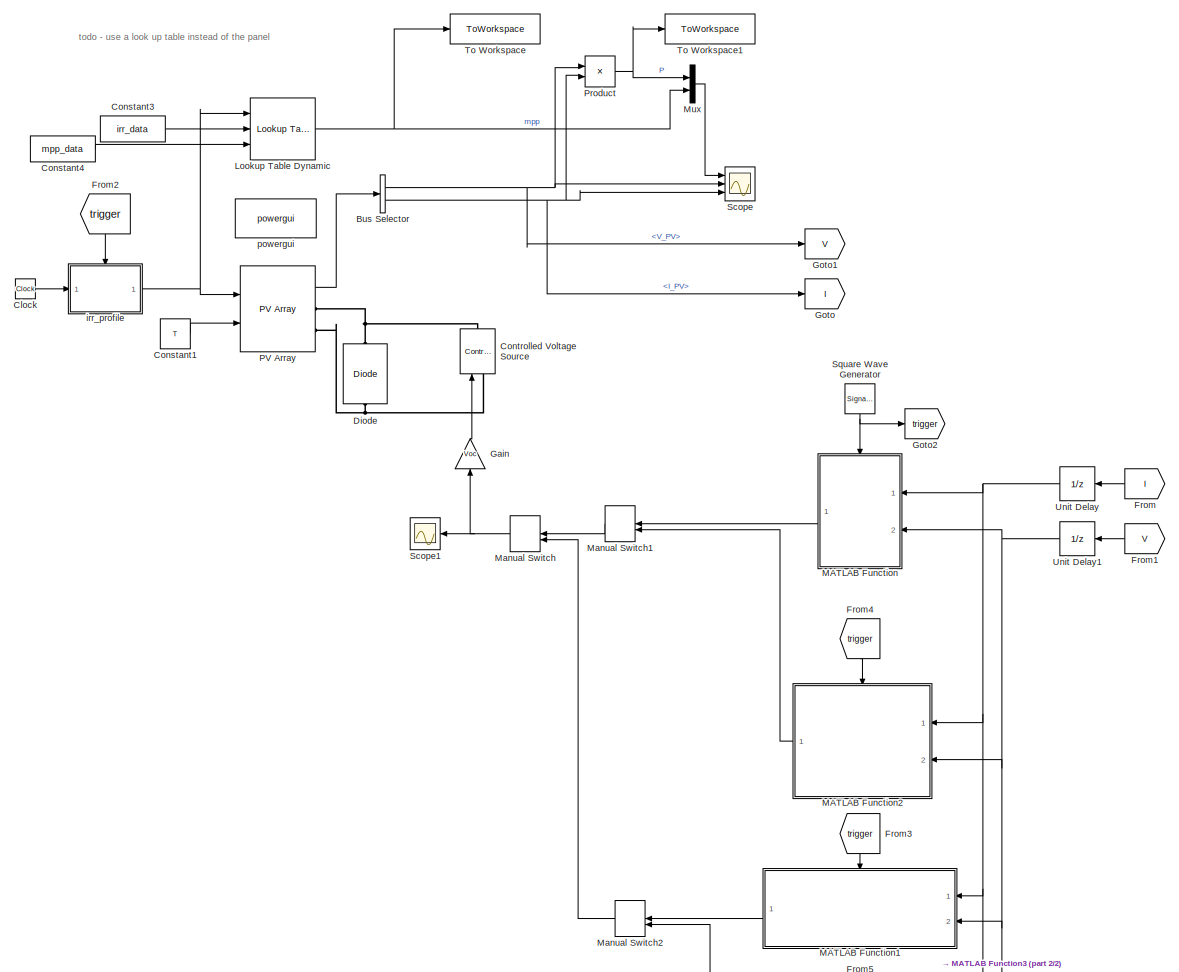
[diagram: root canvas - part 1/2, most of the canvas]
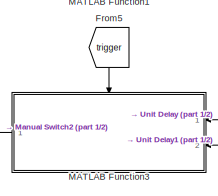
[diagram: root canvas - part 2/2, bottom right region]
MODEL slx_6907d44bb82b
KIND model
CONFIG AbsTol = auto
CONFIG EnableMultiTasking = off
CONFIG FixedStep = 5e-5
CONFIG MaxStep = max_time_step
CONFIG MinStep = auto
CONFIG RelTol = 1e-3
CONFIG SampleTimeConstraint = Unconstrained
CONFIG SolverName = ode23tb
CONFIG StartTime = 0.0
CONFIG StopTime = sim_time
BLOCK [BusSelector] Bus Selector
  OutputSignals = V_PV,I_PV
  Ports = [1, 2]
BLOCK [Clock] Clock
BLOCK [Constant] Constant1
  Value = T
BLOCK [Constant] Constant3
  Value = irr_data
BLOCK [Constant] Constant4
  Value = mpp_data
BLOCK [Reference] Controlled Voltage Source  REF=spsControlledVoltageSourceLib/Controlled Voltage Source
  Ports = [1, 0, 0, 0, 0, 1, 1]
  SourceBlock = spsControlledVoltageSourceLib/Controlled Voltage Source
  SourceProductBaseCode = PS
  SourceType = Controlled Voltage Source
BLOCK [Reference] Diode  REF=spsDiodeLib/Diode
  NameLocation = right
  Ports = [0, 0, 0, 0, 0, 1, 1]
  SourceBlock = spsDiodeLib/Diode
  SourceProductBaseCode = PS
  SourceType = Diode
BLOCK [From] From
  GotoTag = I
BLOCK [From] From1
  GotoTag = V
  NameLocation = top
BLOCK [From] From2
  GotoTag = trigger
  NameLocation = left
BLOCK [From] From3
  GotoTag = trigger
  NameLocation = left
BLOCK [From] From4
  GotoTag = trigger
  NameLocation = left
BLOCK [From] From5
  Commented = on
  GotoTag = trigger
  NameLocation = left
BLOCK [Gain] Gain
  Gain = Voc
  NameLocation = right
BLOCK [Goto] Goto
  GotoTag = I
BLOCK [Goto] Goto1
  GotoTag = V
BLOCK [Goto] Goto2
  GotoTag = trigger
BLOCK [Reference] Lookup Table Dynamic  REF=simulink/Lookup
Tables/Lookup
Table
Dynamic
  Ports = [3, 1]
  SourceBlock = simulink/Lookup\nTables/Lookup\nTable\nDynamic
  SourceProductBaseCode = SL
  SourceType = Lookup Table Dynamic
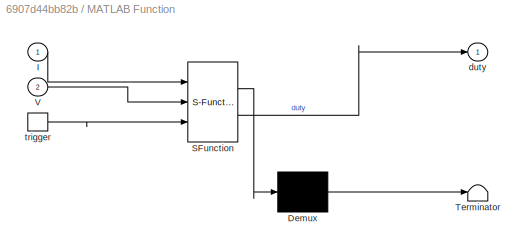
BLOCK [SubSystem] MATLAB Function
  ErrorFcn = Stateflow.Translate.translate
  PermitHierarchicalResolution = ExplicitOnly
  Ports = [2, 1, 0, 1]
  RequestExecContextInheritance = off
  SFBlockType = MATLAB Function
  TreatAsAtomicUnit = on
BLOCK [Demux] MATLAB Function/ Demux 
  Outputs = 1
  Ports = [1, 1]
BLOCK [S-Function] MATLAB Function/ SFunction 
  EnableBusSupport = on
  FunctionName = sf_sfun
  Parameters = duty_step
  PortCounts = [3 2]
  Ports = [3, 2]
  SFcnIsStateOwnerBlock = off
  SFunctionDeploymentMode = off
  Tag = Stateflow S-Function 2
BLOCK [Terminator] MATLAB Function/ Terminator 
BLOCK [Inport] MATLAB Function/I
BLOCK [Inport] MATLAB Function/V
  Port = 2
BLOCK [Outport] MATLAB Function/duty
BLOCK [TriggerPort] MATLAB Function/trigger
  Ports = [0, 1]
  ShowOutputPort = on
  StatesWhenEnabling = held
  VariantControl = (inherit)
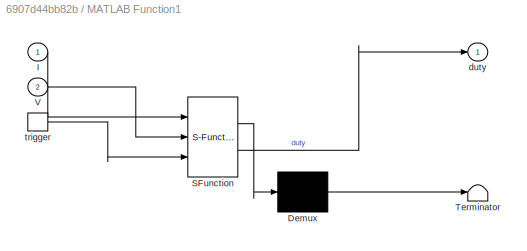
BLOCK [SubSystem] MATLAB Function1
  ErrorFcn = Stateflow.Translate.translate
  PermitHierarchicalResolution = ExplicitOnly
  Ports = [2, 1, 0, 1]
  RequestExecContextInheritance = off
  SFBlockType = MATLAB Function
  TreatAsAtomicUnit = on
BLOCK [Demux] MATLAB Function1/ Demux 
  Outputs = 1
  Ports = [1, 1]
BLOCK [S-Function] MATLAB Function1/ SFunction 
  EnableBusSupport = on
  FunctionName = sf_sfun
  Parameters = Isc,Voc,actions,alpha,deg_threshold,exploration_factor_init,gamma,n_I,n_V,wn,wp
  PortCounts = [3 2]
  Ports = [3, 2]
  SFcnIsStateOwnerBlock = off
  SFunctionDeploymentMode = off
  Tag = Stateflow S-Function 3
BLOCK [Terminator] MATLAB Function1/ Terminator 
BLOCK [Inport] MATLAB Function1/I
BLOCK [Inport] MATLAB Function1/V
  Port = 2
BLOCK [Outport] MATLAB Function1/duty
BLOCK [TriggerPort] MATLAB Function1/trigger
  Ports = [0, 1]
  ShowOutputPort = on
  StatesWhenEnabling = held
  VariantControl = (inherit)
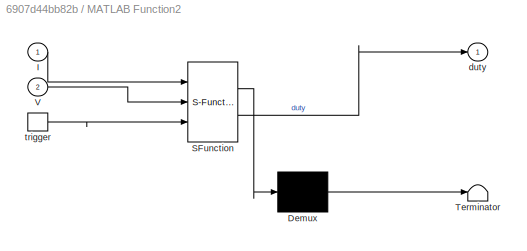
BLOCK [SubSystem] MATLAB Function2
  ErrorFcn = Stateflow.Translate.translate
  PermitHierarchicalResolution = ExplicitOnly
  Ports = [2, 1, 0, 1]
  RequestExecContextInheritance = off
  SFBlockType = MATLAB Function
  TreatAsAtomicUnit = on
BLOCK [Demux] MATLAB Function2/ Demux 
  Outputs = 1
  Ports = [1, 1]
BLOCK [S-Function] MATLAB Function2/ SFunction 
  EnableBusSupport = on
  FunctionName = sf_sfun
  Parameters = duty_step
  PortCounts = [3 2]
  Ports = [3, 2]
  SFcnIsStateOwnerBlock = off
  SFunctionDeploymentMode = off
  Tag = Stateflow S-Function 4
BLOCK [Terminator] MATLAB Function2/ Terminator 
BLOCK [Inport] MATLAB Function2/I
BLOCK [Inport] MATLAB Function2/V
  Port = 2
BLOCK [Outport] MATLAB Function2/duty
BLOCK [TriggerPort] MATLAB Function2/trigger
  Ports = [0, 1]
  ShowOutputPort = on
  StatesWhenEnabling = held
  VariantControl = (inherit)
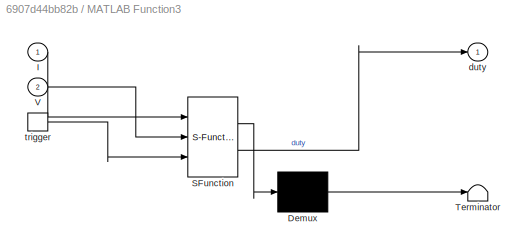
BLOCK [SubSystem] MATLAB Function3
  Commented = on
  ErrorFcn = Stateflow.Translate.translate
  PermitHierarchicalResolution = ExplicitOnly
  Ports = [2, 1, 0, 1]
  RequestExecContextInheritance = off
  SFBlockType = MATLAB Function
  TreatAsAtomicUnit = on
BLOCK [Demux] MATLAB Function3/ Demux 
  Outputs = 1
  Ports = [1, 1]
BLOCK [S-Function] MATLAB Function3/ SFunction 
  EnableBusSupport = on
  FunctionName = sf_sfun
  Parameters = Isc,Voc,actions,alpha,deg_threshold,exploration_factor_init,gamma,n_I,n_V,wn,wp
  PortCounts = [3 2]
  Ports = [3, 2]
  SFcnIsStateOwnerBlock = off
  SFunctionDeploymentMode = off
  Tag = Stateflow S-Function 5
BLOCK [Terminator] MATLAB Function3/ Terminator 
BLOCK [Inport] MATLAB Function3/I
BLOCK [Inport] MATLAB Function3/V
  Port = 2
BLOCK [Outport] MATLAB Function3/duty
BLOCK [TriggerPort] MATLAB Function3/trigger
  Ports = [0, 1]
  ShowOutputPort = on
  StatesWhenEnabling = held
  VariantControl = (inherit)
BLOCK [ManualSwitch] Manual Switch
BLOCK [ManualSwitch] Manual Switch1
  CurrentSetting = 0
BLOCK [ManualSwitch] Manual Switch2
BLOCK [Mux] Mux
  DisplayOption = bar
  Inputs = 2
  Ports = [2, 1]
BLOCK [Reference] PV Array  REF=spsPVArrayLib/PV Array
  Ports = [2, 1, 0, 0, 0, 0, 2]
  SourceBlock = spsPVArrayLib/PV Array
  SourceProductBaseCode = PS
  SourceType = PV array
BLOCK [Product] Product
  Ports = [2, 1]
BLOCK [Scope] Scope
  Floating = off
  NumInputPorts = 3
  Ports = [3]
  ScopeSpecificationString = Simulink.scopes.TimeScopeBlockCfg('CurrentConfiguration', extmgr.ConfigurationSet(extmgr.Configuration('Core','General UI',true),extmgr.Configuration('Core','Source UI',true),extmgr.Configuration('Sources','WiredSimulink',true),extmgr.Configuration('Visuals','Time Domain',true,'SerializedDisplays',{struct('MinYLimReal','-21.91082','MaxYLimReal','197.19738','YLabelReal','','MinYLimMag','0.00000','M...<+2902ch>
BLOCK [Scope] Scope1
  Floating = off
  NumInputPorts = 1
  Ports = [1]
  ScopeSpecificationString = Simulink.scopes.TimeScopeBlockCfg('CurrentConfiguration', extmgr.ConfigurationSet(extmgr.Configuration('Core','General UI',true),extmgr.Configuration('Core','Source UI',true),extmgr.Configuration('Sources','WiredSimulink',true,'DataLoggingVariableName','ScopeData1'),extmgr.Configuration('Visuals','Time Domain',true,'SerializedDisplays',{struct('MinYLimReal','-0.10469','MaxYLimReal','0.94219','YLab...<+1416ch>
BLOCK [SignalGenerator] Square Wave Generator
  Frequency = 1/Ts
  NameLocation = left
  Ports = [0, 1]
  WaveForm = square
BLOCK [ToWorkspace] To Workspace
  FixptAsFi = on
  MaxDataPoints = inf
  Ports = [1]
  SampleTime = -1
  SaveFormat = Timeseries
  VariableName = mpp
BLOCK [ToWorkspace] To Workspace1
  FixptAsFi = on
  MaxDataPoints = inf
  Ports = [1]
  SampleTime = -1
  SaveFormat = Timeseries
  VariableName = power
BLOCK [UnitDelay] Unit Delay
  HasFrameUpgradeWarning = on
  NameLocation = top
  SampleTime = -1
BLOCK [UnitDelay] Unit Delay1
  HasFrameUpgradeWarning = on
  NameLocation = top
  SampleTime = -1
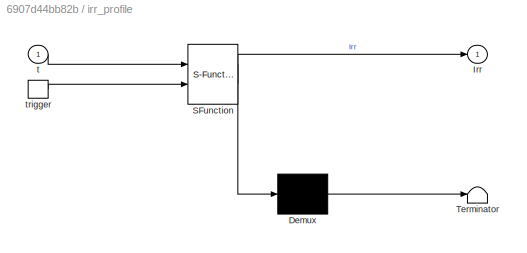
BLOCK [SubSystem] irr_profile
  ErrorFcn = Stateflow.Translate.translate
  PermitHierarchicalResolution = ExplicitOnly
  Ports = [1, 1, 0, 1]
  RequestExecContextInheritance = off
  SFBlockType = MATLAB Function
  TreatAsAtomicUnit = on
BLOCK [Demux] irr_profile/ Demux 
  Outputs = 1
  Ports = [1, 1]
BLOCK [S-Function] irr_profile/ SFunction 
  EnableBusSupport = on
  FunctionName = sf_sfun
  PortCounts = [2 2]
  Ports = [2, 2]
  SFcnIsStateOwnerBlock = off
  SFunctionDeploymentMode = off
  Tag = Stateflow S-Function 1
BLOCK [Terminator] irr_profile/ Terminator 
BLOCK [Outport] irr_profile/Irr
BLOCK [Inport] irr_profile/t
BLOCK [TriggerPort] irr_profile/trigger
  Ports = [0, 1]
  ShowOutputPort = on
  StatesWhenEnabling = held
  VariantControl = (inherit)
BLOCK [Reference] powergui  REF=spspowerguiLib/powergui
  Ports = []
  Priority = 1
  SourceBlock = spspowerguiLib/powergui
  SourceProductBaseCode = PS
  SourceType = PSB option menu block
ANNOTATION (root): todo - use a look up table instead of the panel
NET Bus Selector:1 -> Goto1:1, Product:1, Scope:2
NET Bus Selector:2 -> Goto:1, Product:2, Scope:3
LINE Clock:1 -> irr_profile:1
LINE Constant1:1 -> PV Array:2
LINE Constant3:1 -> Lookup Table Dynamic:2
LINE Constant4:1 -> Lookup Table Dynamic:3
LINE From1:1 -> Unit Delay1:1
LINE From2:1 -> irr_profile:trigger
LINE From3:1 -> MATLAB Function1:trigger
LINE From4:1 -> MATLAB Function2:trigger
LINE From5:1 -> MATLAB Function3:trigger
LINE From:1 -> Unit Delay:1
LINE Gain:1 -> Controlled Voltage Source:1
NET Lookup Table Dynamic:1 -> Mux:2, To Workspace:1
LINE MATLAB Function1:1 -> Manual Switch2:1
LINE MATLAB Function2:1 -> Manual Switch1:2
LINE MATLAB Function3:1 -> Manual Switch2:2
LINE MATLAB Function:1 -> Manual Switch1:1
LINE Manual Switch1:1 -> Manual Switch:1
LINE Manual Switch2:1 -> Manual Switch:2
NET Manual Switch:1 -> Gain:1, Scope1:1
LINE Mux:1 -> Scope:1
LINE PV Array:1 -> Bus Selector:1
NET Product:1 -> Mux:1, To Workspace1:1
NET Square Wave Generator:1 -> Goto2:1, MATLAB Function:trigger
NET Unit Delay1:1 -> MATLAB Function1:2, MATLAB Function2:2, MATLAB Function3:2, MATLAB Function:2
NET Unit Delay:1 -> MATLAB Function1:1, MATLAB Function2:1, MATLAB Function3:1, MATLAB Function:1
NET irr_profile:1 -> Lookup Table Dynamic:1, PV Array:1
PNET net1: Controlled Voltage Source:LConn1 -- Diode:LConn1 -- PV Array:RConn2
PNET net2: Controlled Voltage Source:RConn1 -- Diode:RConn1 -- PV Array:RConn1
note: NET lines group one-source signal fan-out (src -> all destinations, sorted); 1:1 wires keep LINE; PNET lines group multi-terminal physical nets as a canonical sorted terminal list (undirected conserving connections); 2-terminal nets keep the pairwise PLINE form
CHART irr_profile states=1 transitions=1
  STATE_LABEL 'eML_blk_kernel()'
  STATE_LABEL 'SCRIPT:\nfunction Irr = irr_profile(t)\n%#codegen\n\n%    This function was generated by the Symbolic Math Toolbox version 9.0.\n%    14-Jan-2022 23:46:27\n\nt2 = ((0.0 <= t) & (t <= 2.0./5.0));\nt3 = ((2.0./5.0 <= t) & (t <= 4.0./5.0));\nt4 = ((4.0./5.0 <= t) & (t <= 6.0./5.0));\nt5 = ((6.0./5.0 <= t) & (t <= 7.0./5.0));\nt6 = ((7.0./5.0 <= t) & (t <= 9.0./5.0));\nt7 = ((t <= 2.0) & (9.0./5.0 <= t));\nt8 = t....<+236ch>'
CHART MATLAB Function states=1 transitions=1
  STATE_LABEL 'eML_blk_kernel()'
  STATE_LABEL 'SCRIPT:\n% @p_and_o - a function implementing the Perturb and Observe MPPT algorithm\nfunction duty = p_and_o_block(I, V, duty_step)\n\n    % make sure that function is included in the project path\n    duty = 0; % a requried init so that the program knows the size of the var\n    duty = p_and_o(I, V, duty_step);    \nend'
CHART MATLAB Function1 states=1 transitions=1
  STATE_LABEL 'eML_blk_kernel()'
  STATE_LABEL 'SCRIPT:\nfunction duty = q_table_block(I, V, Voc, Isc, deg_threshold, wp, wn, n_V, n_I, actions, alpha, gamma, exploration_factor_init)\n    \n    % make sure that function is included in the project path\n    \n    duty = 0; % a requried init so that the program knows the size of the var\n    duty = q_table(I, V, Voc, Isc, deg_threshold, wp, wn, n_V, n_I, actions, alpha, gamma, exploration_factor_init)...<+7ch>'
CHART MATLAB Function2 states=1 transitions=1
  STATE_LABEL 'eML_blk_kernel()'
  STATE_LABEL 'SCRIPT:\n% @incr_cond - a function implementing the Incremental conductance MPPT algorithm\nfunction duty = incr_cond_block(I, V, duty_step)\n\n    % make sure that function is included in the project path\n    duty = 0; % a requried init so that the program knows the size of the var\n    duty = incr_cond(I, V, duty_step);    \nend'
CHART MATLAB Function3 states=1 transitions=1
  STATE_LABEL 'eML_blk_kernel()'
  STATE_LABEL 'SCRIPT:\nfunction duty = deep_q_block(I, V, Voc, Isc, deg_threshold, wp, wn, n_V, n_I, actions, alpha, gamma, exploration_factor_init)\n    \n    % make sure that function is included in the project path\n    \n    duty = 0; % a requried init so that the program knows the size of the var\n\nend\n\n'
CHART  states=0 transitions=0
CHART  states=0 transitions=0
CHART  states=0 transitions=0
CHART  states=0 transitions=0
CHART  states=0 transitions=0
